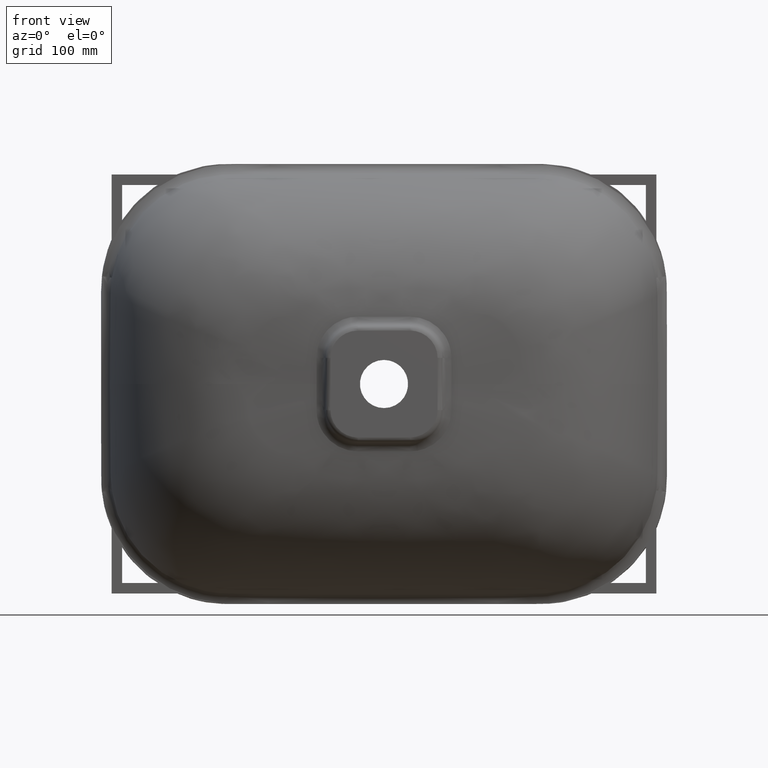
[diagram: clean part render]
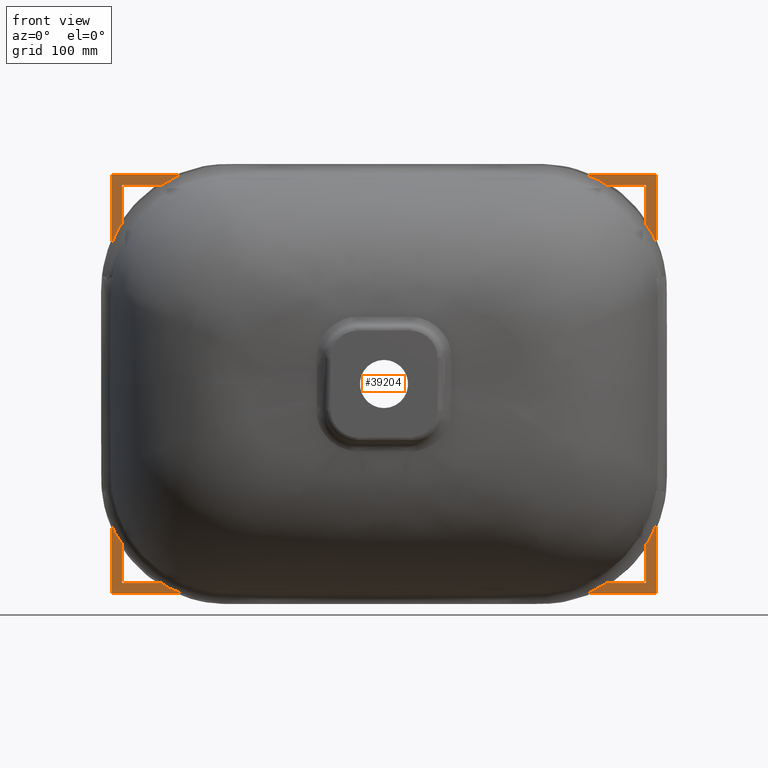
[diagram: same view with one face highlighted and labeled with its STEP entity id]
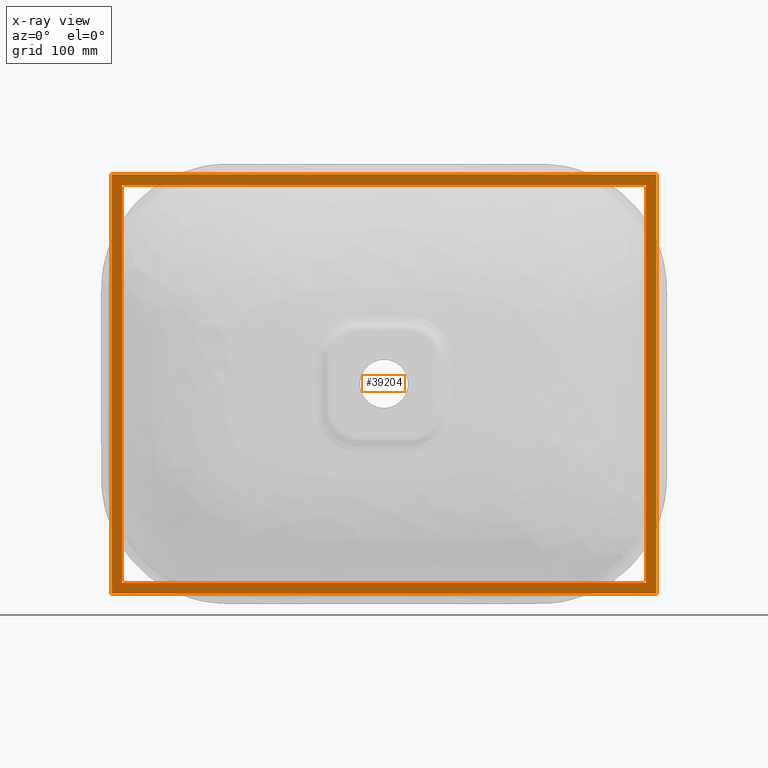
[diagram: x-ray of the same camera — body ghosted, the highlighted face saturated]
A machine part, front view. The second image highlights one B-rep face of the part: STEP entity #39204.
The next image is the same camera in x-ray: the body ghosted, the highlighted face saturated — about 0% of this face is hidden behind the body in this view.
In plain terms, the highlighted planar face has unit normal (0, 1, 0).
Its self-contained STEP definition (entity closure, byte-faithful):
#1154 = LINE ( 'NONE', #45295, #35725 ) ;
#1537 = CARTESIAN_POINT ( 'NONE',  ( -250.0000000000000000, -10.00000000000000000, -190.0000000000000000 ) ) ;
#2589 = ORIENTED_EDGE ( 'NONE', *, *, #22224, .F. ) ;
#3104 = LINE ( 'NONE', #19237, #53987 ) ;
#3389 = LINE ( 'NONE', #40435, #4788 ) ;
#4788 = VECTOR ( 'NONE', #13401, 1000.000000000000000 ) ;
#5916 = LINE ( 'NONE', #55141, #43372 ) ;
#8485 = CARTESIAN_POINT ( 'NONE',  ( 250.0000000000001700, -10.00000000000000000, -190.0000000000000000 ) ) ;
#8884 = VERTEX_POINT ( 'NONE', #27643 ) ;
#8937 = VERTEX_POINT ( 'NONE', #41495 ) ;
#9192 = EDGE_LOOP ( 'NONE', ( #36467, #32361, #36531, #22988 ) ) ;
#9868 = ORIENTED_EDGE ( 'NONE', *, *, #49840, .F. ) ;
#10445 = EDGE_CURVE ( 'NONE', #47805, #52839, #5916, .T. ) ;
#11390 = DIRECTION ( 'NONE',  ( -1.000000000000000000, -0.0000000000000000000, -0.0000000000000000000 ) ) ;
#13378 = CARTESIAN_POINT ( 'NONE',  ( 250.0000000000001700, -10.00000000000000000, -190.0000000000000000 ) ) ;
#13401 = DIRECTION ( 'NONE',  ( 1.000000000000000000, 0.0000000000000000000, 0.0000000000000000000 ) ) ;
#13467 = AXIS2_PLACEMENT_3D ( 'NONE', #19405, #46877, #19795 ) ;
#14561 = VECTOR ( 'NONE', #11390, 1000.000000000000000 ) ;
#14729 = ORIENTED_EDGE ( 'NONE', *, *, #46455, .F. ) ;
#14937 = EDGE_CURVE ( 'NONE', #52839, #8884, #3389, .T. ) ;
#15273 = PLANE ( 'NONE',  #13467 ) ;
#16761 = CARTESIAN_POINT ( 'NONE',  ( -259.9999999999999400, -10.00000000000000000, 200.0000000000000900 ) ) ;
#17711 = FACE_BOUND ( 'NONE', #9192, .T. ) ;
#18297 = CARTESIAN_POINT ( 'NONE',  ( 260.0000000000002300, -10.00000000000000000, 200.0000000000000900 ) ) ;
#19196 = CARTESIAN_POINT ( 'NONE',  ( -249.9999999999999400, -10.00000000000000000, 190.0000000000000900 ) ) ;
#19237 = CARTESIAN_POINT ( 'NONE',  ( 260.0000000000001700, -10.00000000000000000, -200.0000000000000000 ) ) ;
#19405 = CARTESIAN_POINT ( 'NONE',  ( 0.0000000000000000000, -10.00000000000000000, 0.0000000000000000000 ) ) ;
#19529 = ORIENTED_EDGE ( 'NONE', *, *, #25557, .F. ) ;
#19795 = DIRECTION ( 'NONE',  ( 0.0000000000000000000, -0.0000000000000000000, 1.000000000000000000 ) ) ;
#20733 = DIRECTION ( 'NONE',  ( 1.460819769243626600E-016, 0.0000000000000000000, 1.000000000000000000 ) ) ;
#21284 = DIRECTION ( 'NONE',  ( 1.000000000000000000, 0.0000000000000000000, 0.0000000000000000000 ) ) ;
#22224 = EDGE_CURVE ( 'NONE', #25262, #45672, #33373, .T. ) ;
#22988 = ORIENTED_EDGE ( 'NONE', *, *, #23208, .T. ) ;
#23208 = EDGE_CURVE ( 'NONE', #8884, #28633, #46904, .T. ) ;
#25262 = VERTEX_POINT ( 'NONE', #52700 ) ;
#25557 = EDGE_CURVE ( 'NONE', #45672, #25885, #3104, .T. ) ;
#25885 = VERTEX_POINT ( 'NONE', #36153 ) ;
#27643 = CARTESIAN_POINT ( 'NONE',  ( 250.0000000000002300, -10.00000000000000000, 190.0000000000000900 ) ) ;
#27945 = VECTOR ( 'NONE', #37806, 1000.000000000000000 ) ;
#28633 = VERTEX_POINT ( 'NONE', #13378 ) ;
#30834 = DIRECTION ( 'NONE',  ( -1.387778780781445200E-016, -0.0000000000000000000, -1.000000000000000000 ) ) ;
#32006 = VECTOR ( 'NONE', #57459, 1000.000000000000000 ) ;
#32361 = ORIENTED_EDGE ( 'NONE', *, *, #10445, .T. ) ;
#33072 = CARTESIAN_POINT ( 'NONE',  ( -260.0000000000000000, -10.00000000000000000, -200.0000000000000000 ) ) ;
#33373 = LINE ( 'NONE', #16761, #48290 ) ;
#35725 = VECTOR ( 'NONE', #49850, 1000.000000000000000 ) ;
#36148 = FACE_OUTER_BOUND ( 'NONE', #43806, .T. ) ;
#36153 = CARTESIAN_POINT ( 'NONE',  ( 260.0000000000001700, -10.00000000000000000, -200.0000000000000000 ) ) ;
#36467 = ORIENTED_EDGE ( 'NONE', *, *, #46805, .T. ) ;
#36531 = ORIENTED_EDGE ( 'NONE', *, *, #14937, .T. ) ;
#37806 = DIRECTION ( 'NONE',  ( 1.387778780781445200E-016, 0.0000000000000000000, 1.000000000000000000 ) ) ;
#38401 = CARTESIAN_POINT ( 'NONE',  ( -250.0000000000000000, -10.00000000000000000, -190.0000000000000000 ) ) ;
#39204 = ADVANCED_FACE ( 'NONE', ( #17711, #36148 ), #15273, .F. ) ;
#40435 = CARTESIAN_POINT ( 'NONE',  ( -249.9999999999999400, -10.00000000000000000, 190.0000000000000900 ) ) ;
#41495 = CARTESIAN_POINT ( 'NONE',  ( -260.0000000000000000, -10.00000000000000000, -200.0000000000000000 ) ) ;
#43372 = VECTOR ( 'NONE', #20733, 1000.000000000000000 ) ;
#43806 = EDGE_LOOP ( 'NONE', ( #14729, #9868, #19529, #2589 ) ) ;
#45295 = CARTESIAN_POINT ( 'NONE',  ( -260.0000000000000000, -10.00000000000000000, -200.0000000000000000 ) ) ;
#45672 = VERTEX_POINT ( 'NONE', #18297 ) ;
#46455 = EDGE_CURVE ( 'NONE', #8937, #25262, #50605, .T. ) ;
#46805 = EDGE_CURVE ( 'NONE', #28633, #47805, #49212, .T. ) ;
#46877 = DIRECTION ( 'NONE',  ( 0.0000000000000000000, 1.000000000000000000, 0.0000000000000000000 ) ) ;
#46904 = LINE ( 'NONE', #8485, #32006 ) ;
#47805 = VERTEX_POINT ( 'NONE', #1537 ) ;
#48290 = VECTOR ( 'NONE', #21284, 1000.000000000000000 ) ;
#49212 = LINE ( 'NONE', #38401, #14561 ) ;
#49840 = EDGE_CURVE ( 'NONE', #25885, #8937, #1154, .T. ) ;
#49850 = DIRECTION ( 'NONE',  ( -1.000000000000000000, -0.0000000000000000000, -0.0000000000000000000 ) ) ;
#50605 = LINE ( 'NONE', #33072, #27945 ) ;
#52700 = CARTESIAN_POINT ( 'NONE',  ( -259.9999999999999400, -10.00000000000000000, 200.0000000000000900 ) ) ;
#52839 = VERTEX_POINT ( 'NONE', #19196 ) ;
#53987 = VECTOR ( 'NONE', #30834, 1000.000000000000000 ) ;
#55141 = CARTESIAN_POINT ( 'NONE',  ( -250.0000000000000000, -10.00000000000000000, -190.0000000000000000 ) ) ;
#57459 = DIRECTION ( 'NONE',  ( -1.460819769243626600E-016, -0.0000000000000000000, -1.000000000000000000 ) ) ;